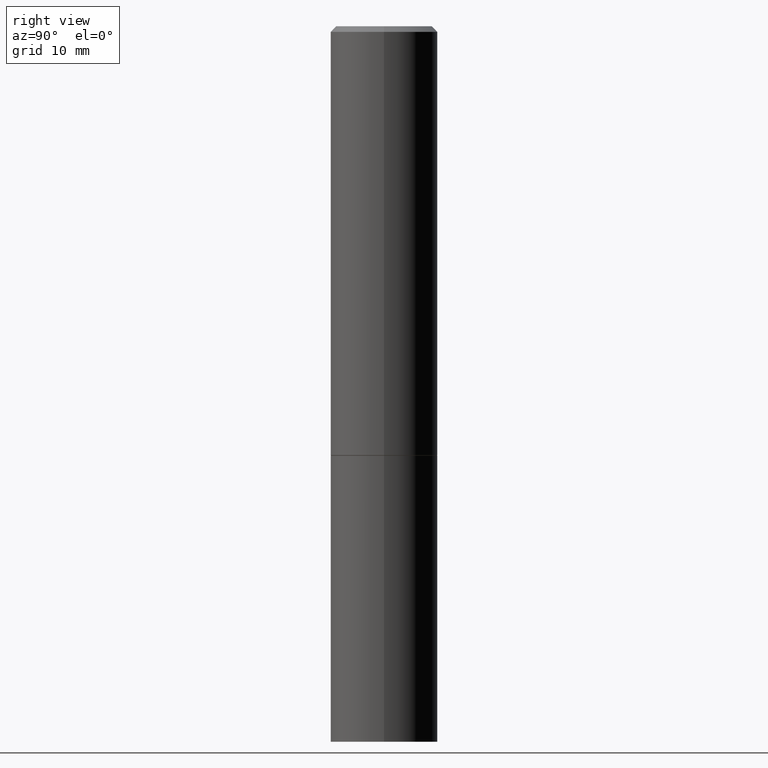
[diagram: clean part render]
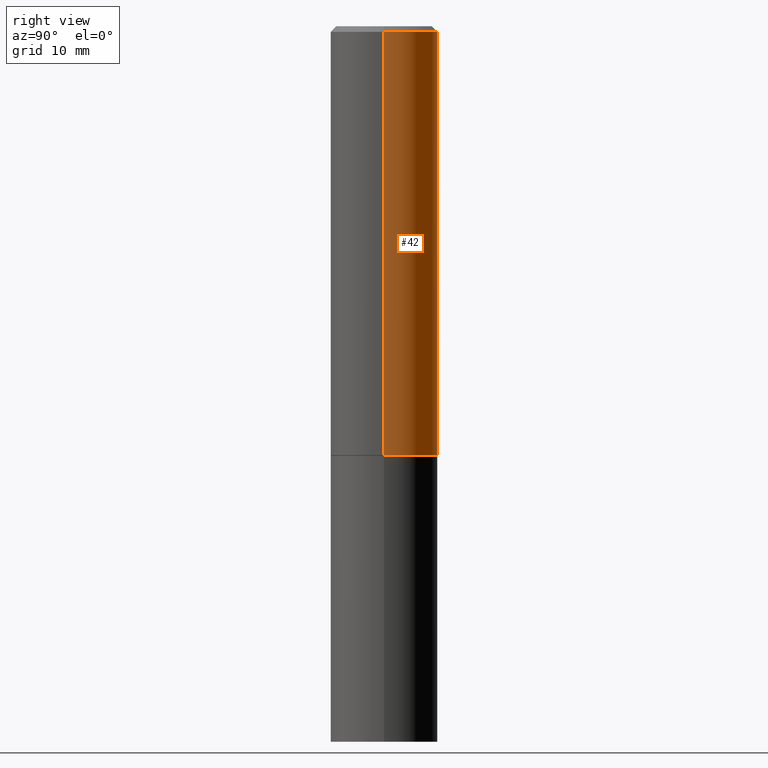
[diagram: same view with one face highlighted and labeled with its STEP entity id]
A machine part, right view. The second image highlights one B-rep face of the part: STEP entity #42.
In plain terms, the highlighted cylindrical surface (partial cylindrical patch) has radius 4.7625 mm, axis along (-0, 0, 1).
Its self-contained STEP definition (entity closure, byte-faithful):
#13 = AXIS2_PLACEMENT_3D ( 'NONE', #150, #102, #164 ) ;
#14 = DIRECTION ( 'NONE',  ( -2.445468806185136597E-29, 3.491481338843145583E-15, 1.000000000000000000 ) ) ;
#28 = EDGE_CURVE ( 'NONE', #152, #326, #153, .T. ) ;
#34 = LINE ( 'NONE', #345, #228 ) ;
#42 = ADVANCED_FACE ( 'NONE', ( #353 ), #99, .T. ) ;
#47 = VERTEX_POINT ( 'NONE', #361 ) ;
#50 = EDGE_LOOP ( 'NONE', ( #218, #123, #96, #236 ) ) ;
#88 = AXIS2_PLACEMENT_3D ( 'NONE', #138, #105, #331 ) ;
#96 = ORIENTED_EDGE ( 'NONE', *, *, #28, .F. ) ;
#99 = CYLINDRICAL_SURFACE ( 'NONE', #88, 0.1874999999999999167 ) ;
#102 = DIRECTION ( 'NONE',  ( -2.445468806185136597E-29, 3.491481338843145583E-15, 1.000000000000000000 ) ) ;
#105 = DIRECTION ( 'NONE',  ( -2.445468806185136597E-29, 3.491481338843145583E-15, 1.000000000000000000 ) ) ;
#108 = EDGE_CURVE ( 'NONE', #195, #47, #141, .T. ) ;
#118 = LINE ( 'NONE', #262, #244 ) ;
#121 = DIRECTION ( 'NONE',  ( -2.445468806185136877E-29, 3.491481338843145188E-15, 1.000000000000000000 ) ) ;
#123 = ORIENTED_EDGE ( 'NONE', *, *, #333, .T. ) ;
#124 = DIRECTION ( 'NONE',  ( 1.000000000000000000, -6.982962677686266711E-15, 0.000000000000000000 ) ) ;
#138 = CARTESIAN_POINT ( 'NONE',  ( 0.000000000000000000, 0.000000000000000000, 0.000000000000000000 ) ) ;
#141 = CIRCLE ( 'NONE', #13, 0.1875000000000000278 ) ;
#145 = CARTESIAN_POINT ( 'NONE',  ( 0.1875000000000000278, -6.543036028992050967E-15, -1.499000000000000110 ) ) ;
#150 = CARTESIAN_POINT ( 'NONE',  ( 3.665757740471519853E-29, -5.233730526925875958E-15, -1.499000000000000110 ) ) ;
#152 = VERTEX_POINT ( 'NONE', #223 ) ;
#153 = CIRCLE ( 'NONE', #255, 0.1874999999999998057 ) ;
#162 = DIRECTION ( 'NONE',  ( -2.445468806185136877E-29, 3.491481338843145188E-15, 1.000000000000000000 ) ) ;
#164 = DIRECTION ( 'NONE',  ( 1.000000000000000000, -6.982962677686266711E-15, 0.000000000000000000 ) ) ;
#195 = VERTEX_POINT ( 'NONE', #145 ) ;
#209 = CARTESIAN_POINT ( 'NONE',  ( -0.1874999999999998057, 1.239475875289310527E-15, -0.02000000000000004205 ) ) ;
#218 = ORIENTED_EDGE ( 'NONE', *, *, #108, .T. ) ;
#223 = CARTESIAN_POINT ( 'NONE',  ( 0.1874999999999998057, -1.356173001359023888E-15, -0.02000000000000004205 ) ) ;
#228 = VECTOR ( 'NONE', #121, 39.37007874015748143 ) ;
#234 = CARTESIAN_POINT ( 'NONE',  ( 4.890937612370283668E-31, -6.982962677686305168E-17, -0.02000000000000004205 ) ) ;
#236 = ORIENTED_EDGE ( 'NONE', *, *, #346, .F. ) ;
#244 = VECTOR ( 'NONE', #162, 39.37007874015748143 ) ;
#255 = AXIS2_PLACEMENT_3D ( 'NONE', #234, #14, #124 ) ;
#262 = CARTESIAN_POINT ( 'NONE',  ( 0.1874999999999999167, -1.309305502066174219E-15, 9.142831454617375408E-30 ) ) ;
#326 = VERTEX_POINT ( 'NONE', #209 ) ;
#331 = DIRECTION ( 'NONE',  ( 1.000000000000000000, -6.982962677686265922E-15, 4.876176775795935793E-29 ) ) ;
#333 = EDGE_CURVE ( 'NONE', #47, #326, #34, .T. ) ;
#345 = CARTESIAN_POINT ( 'NONE',  ( -0.1874999999999999167, 1.332267629550187257E-15, -9.223003294227943787E-30 ) ) ;
#346 = EDGE_CURVE ( 'NONE', #195, #152, #118, .T. ) ;
#353 = FACE_OUTER_BOUND ( 'NONE', #50, .T. ) ;
#361 = CARTESIAN_POINT ( 'NONE',  ( -0.1874999999999999722, -1.319512447301180399E-15, -1.499000000000000110 ) ) ;